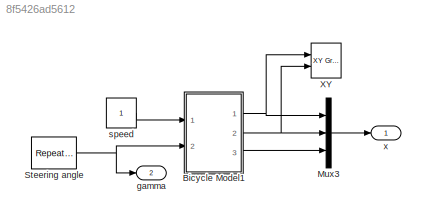
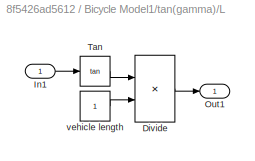
MODEL slx_8f5426ad5612
KIND model
CONFIG AbsTol = auto
CONFIG EnableMultiTasking = on
CONFIG FixedStep = auto
CONFIG MaxStep = auto
CONFIG MinStep = auto
CONFIG RelTol = 1e-3
CONFIG SampleTimeConstraint = Unconstrained
CONFIG SolverName = ode45
CONFIG StartTime = 0.0
CONFIG StopTime = 10.0
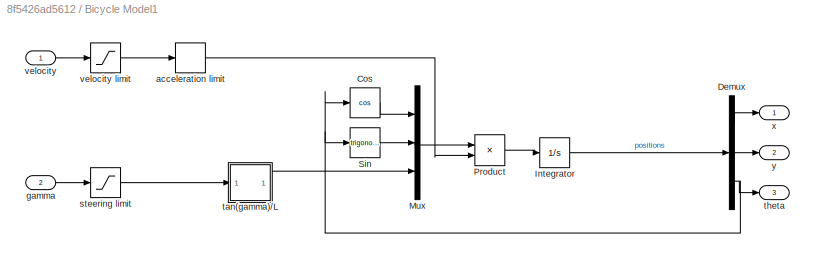
BLOCK [SubSystem] Bicycle Model1
  Ports = [2, 3]
  RequestExecContextInheritance = off
BLOCK [Trigonometry] Bicycle Model1/Cos
  Operator = cos
  Ports = [1, 1]
BLOCK [Demux] Bicycle Model1/Demux
  Outputs = 3
  Ports = [1, 3]
BLOCK [Integrator] Bicycle Model1/Integrator
  InitialCondition = [0 0 0]
  Ports = [1, 1]
BLOCK [Mux] Bicycle Model1/Mux
  DisplayOption = bar
  Inputs = 3
  Ports = [3, 1]
BLOCK [Product] Bicycle Model1/Product
  Ports = [2, 1]
BLOCK [Trigonometry] Bicycle Model1/Sin
  Ports = [1, 1]
BLOCK [RateLimiter] Bicycle Model1/acceleration limit
  FallingSlewLimit = -2
  RisingSlewLimit = 2
  SampleTimeMode = inherited
BLOCK [Inport] Bicycle Model1/gamma
  Port = 2
BLOCK [Saturate] Bicycle Model1/steering limit
  LowerLimit = -1
  UpperLimit = 1
BLOCK [SubSystem] Bicycle Model1/tan(gamma)//L
  Ports = [1, 1]
  RequestExecContextInheritance = off
BLOCK [Product] Bicycle Model1/tan(gamma)//L/Divide
  Inputs = */
  Ports = [2, 1]
BLOCK [Inport] Bicycle Model1/tan(gamma)//L/In1
BLOCK [Outport] Bicycle Model1/tan(gamma)//L/Out1
BLOCK [Trigonometry] Bicycle Model1/tan(gamma)//L/Tan
  Operator = tan
  Ports = [1, 1]
BLOCK [Constant] Bicycle Model1/tan(gamma)//L/vehicle length
BLOCK [Outport] Bicycle Model1/theta
  Port = 3
BLOCK [Inport] Bicycle Model1/velocity
BLOCK [Saturate] Bicycle Model1/velocity limit
  LowerLimit = -5
  UpperLimit = 5
BLOCK [Outport] Bicycle Model1/x
BLOCK [Outport] Bicycle Model1/y
  Port = 2
BLOCK [Mux] Mux3
  DisplayOption = bar
  Inputs = 3
  Ports = [3, 1]
BLOCK [Reference] Steering angle  REF=simulink/Sources/Repeating
Sequence
Stair
  Ports = [0, 1]
  SourceBlock = simulink/Sources/Repeating\nSequence\nStair
  SourceProductBaseCode = SL
  SourceType = Repeating Sequence Stair
BLOCK [Reference] XY  REF=simulink/Sinks/XY Graph
  Ports = [2]
  SourceBlock = simulink/Sinks/XY Graph
  SourceProductBaseCode = SL
  SourceType = XY scope.
BLOCK [Outport] gamma
  Port = 2
BLOCK [Constant] speed
  SampleTime = 0.02
  VectorParams1D = off
BLOCK [Outport] x
LINE Bicycle Model1/Cos:1 -> Bicycle Model1/Mux:1
LINE Bicycle Model1/Demux:1 -> Bicycle Model1/x:1
LINE Bicycle Model1/Demux:2 -> Bicycle Model1/y:1
NET Bicycle Model1/Demux:3 -> Bicycle Model1/Cos:1, Bicycle Model1/Sin:1, Bicycle Model1/theta:1
LINE Bicycle Model1/Integrator:1 -> Bicycle Model1/Demux:1
LINE Bicycle Model1/Mux:1 -> Bicycle Model1/Product:1
LINE Bicycle Model1/Product:1 -> Bicycle Model1/Integrator:1
LINE Bicycle Model1/Sin:1 -> Bicycle Model1/Mux:2
LINE Bicycle Model1/acceleration limit:1 -> Bicycle Model1/Product:2
LINE Bicycle Model1/gamma:1 -> Bicycle Model1/steering limit:1
LINE Bicycle Model1/steering limit:1 -> Bicycle Model1/tan(gamma)//L:1
LINE Bicycle Model1/tan(gamma)//L/Divide:1 -> Bicycle Model1/tan(gamma)//L/Out1:1
LINE Bicycle Model1/tan(gamma)//L/In1:1 -> Bicycle Model1/tan(gamma)//L/Tan:1
LINE Bicycle Model1/tan(gamma)//L/Tan:1 -> Bicycle Model1/tan(gamma)//L/Divide:1
LINE Bicycle Model1/tan(gamma)//L/vehicle length:1 -> Bicycle Model1/tan(gamma)//L/Divide:2
LINE Bicycle Model1/tan(gamma)//L:1 -> Bicycle Model1/Mux:3
LINE Bicycle Model1/velocity limit:1 -> Bicycle Model1/acceleration limit:1
LINE Bicycle Model1/velocity:1 -> Bicycle Model1/velocity limit:1
NET Bicycle Model1:1 -> Mux3:1, XY:1
NET Bicycle Model1:2 -> Mux3:2, XY:2
LINE Bicycle Model1:3 -> Mux3:3
LINE Mux3:1 -> x:1
NET Steering angle:1 -> Bicycle Model1:2, gamma:1
LINE speed:1 -> Bicycle Model1:1
note: NET lines group one-source signal fan-out (src -> all destinations, sorted); 1:1 wires keep LINE
